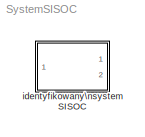
MODEL SystemSISOC
KIND model
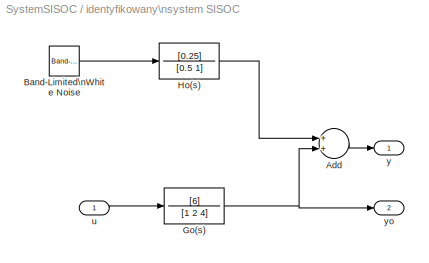
BLOCK [SubSystem] identyfikowany\nsystem SISOC
  MaskHideContents = off
  MinAlgLoopOccurrences = off
  Ports = [1, 2]
  RTWSystemCode = Auto
  TreatAsAtomicUnit = off
BLOCK [Sum] identyfikowany\nsystem SISOC/Add
  InputSameDT = off
  OutDataTypeMode = Inherit via internal rule
  OutScaling = 2^-10
  Ports = [2, 1]
  SaturateOnIntegerOverflow = off
BLOCK [Reference] identyfikowany\nsystem SISOC/Band-Limited\nWhite Noise  REF=simulink/Sources/Band-Limited\nWhite Noise
  Cov = [sigma2e]
  Ports = [0, 1]
  ShowPortLabels = on
  SourceBlock = simulink/Sources/Band-Limited\nWhite Noise
  SourceType = Band-Limited White Noise.
  Ts = Tp*0.1
  VectorParams1D = on
  seed = [2941]
BLOCK [TransferFcn] identyfikowany\nsystem SISOC/Go(s)
  Denominator = [1 2 4]
  Numerator = [6]
BLOCK [TransferFcn] identyfikowany\nsystem SISOC/Ho(s)
  Denominator = [0.5 1]
  Numerator = [0.25]
BLOCK [Inport] identyfikowany\nsystem SISOC/u
  IconDisplay = Port number
BLOCK [Outport] identyfikowany\nsystem SISOC/y
  IconDisplay = Port number
BLOCK [Outport] identyfikowany\nsystem SISOC/yo
  IconDisplay = Port number
  Port = 2
LINE identyfikowany\nsystem SISOC/Add:1 -> identyfikowany\nsystem SISOC/y:1
LINE identyfikowany\nsystem SISOC/Band-Limited\nWhite Noise:1 -> identyfikowany\nsystem SISOC/Ho(s):1
NET identyfikowany\nsystem SISOC/Go(s):1 -> identyfikowany\nsystem SISOC/Add:2, identyfikowany\nsystem SISOC/yo:1
LINE identyfikowany\nsystem SISOC/Ho(s):1 -> identyfikowany\nsystem SISOC/Add:1
LINE identyfikowany\nsystem SISOC/u:1 -> identyfikowany\nsystem SISOC/Go(s):1
note: NET lines group one-source signal fan-out (src -> all destinations, sorted); 1:1 wires keep LINE
